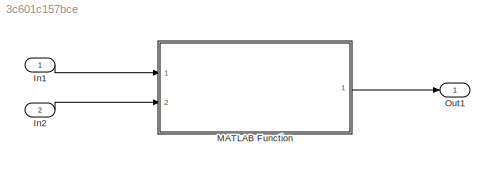
MODEL slx_3c601c157bce
KIND model
CONFIG AbsTol = auto
CONFIG EnableMultiTasking = off
CONFIG FixedStep = auto
CONFIG MaxStep = auto
CONFIG MinStep = auto
CONFIG RelTol = 1e-3
CONFIG SampleTimeConstraint = Unconstrained
CONFIG Solver = FixedStepDiscrete
CONFIG SolverName = FixedStepDiscrete
CONFIG StartTime = 0.0
CONFIG StopTime = 1
BLOCK [Inport] In1
  IconDisplay = Port number
  LockScale = on
  OutDataTypeStr = fixdt(1,16,2^0,0)
BLOCK [Inport] In2
  IconDisplay = Port number
  OutDataTypeStr = int16
  Port = 2
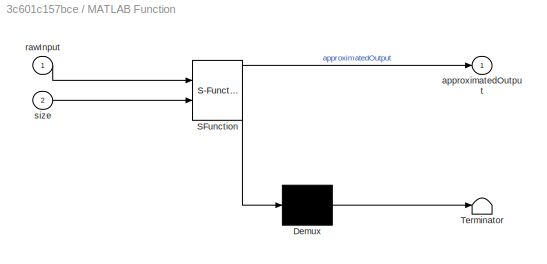
BLOCK [SubSystem] MATLAB Function
  ErrorFcn = Stateflow.Translate.translate
  PermitHierarchicalResolution = ExplicitOnly
  Ports = [2, 1]
  RequestExecContextInheritance = off
  SFBlockType = MATLAB Function
  TreatAsAtomicUnit = on
BLOCK [Demux] MATLAB Function/ Demux 
  Outputs = 1
  Ports = [1, 1]
BLOCK [S-Function] MATLAB Function/ SFunction 
  EnableBusSupport = on
  FunctionName = sf_sfun
  PortCounts = [2 2]
  Ports = [2, 2]
  SFcnIsStateOwnerBlock = off
  SFunctionDeploymentMode = off
  Tag = Stateflow S-Function 2
BLOCK [Terminator] MATLAB Function/ Terminator 
BLOCK [Outport] MATLAB Function/approximatedOutput
  IconDisplay = Port number
BLOCK [Inport] MATLAB Function/rawInput
  IconDisplay = Port number
BLOCK [Inport] MATLAB Function/size
  IconDisplay = Port number
  Port = 2
BLOCK [Outport] Out1
  IconDisplay = Port number
LINE In1:1 -> MATLAB Function:1
LINE In2:1 -> MATLAB Function:2
LINE MATLAB Function:1 -> Out1:1
CHART MATLAB Function states=1 transitions=1
  STATE_LABEL 'eML_blk_kernel()'
  STATE_LABEL 'SCRIPT:\nfunction approximatedOutput = fcn(rawInput, size)\nInput = rawInput(1:size);\nx = 1:1:length(Input);\nx = rot90(x);\ncoeff2 = polyfit(x, Input, 5);\napproximatedOutput = coeff2;\n\n\n'
